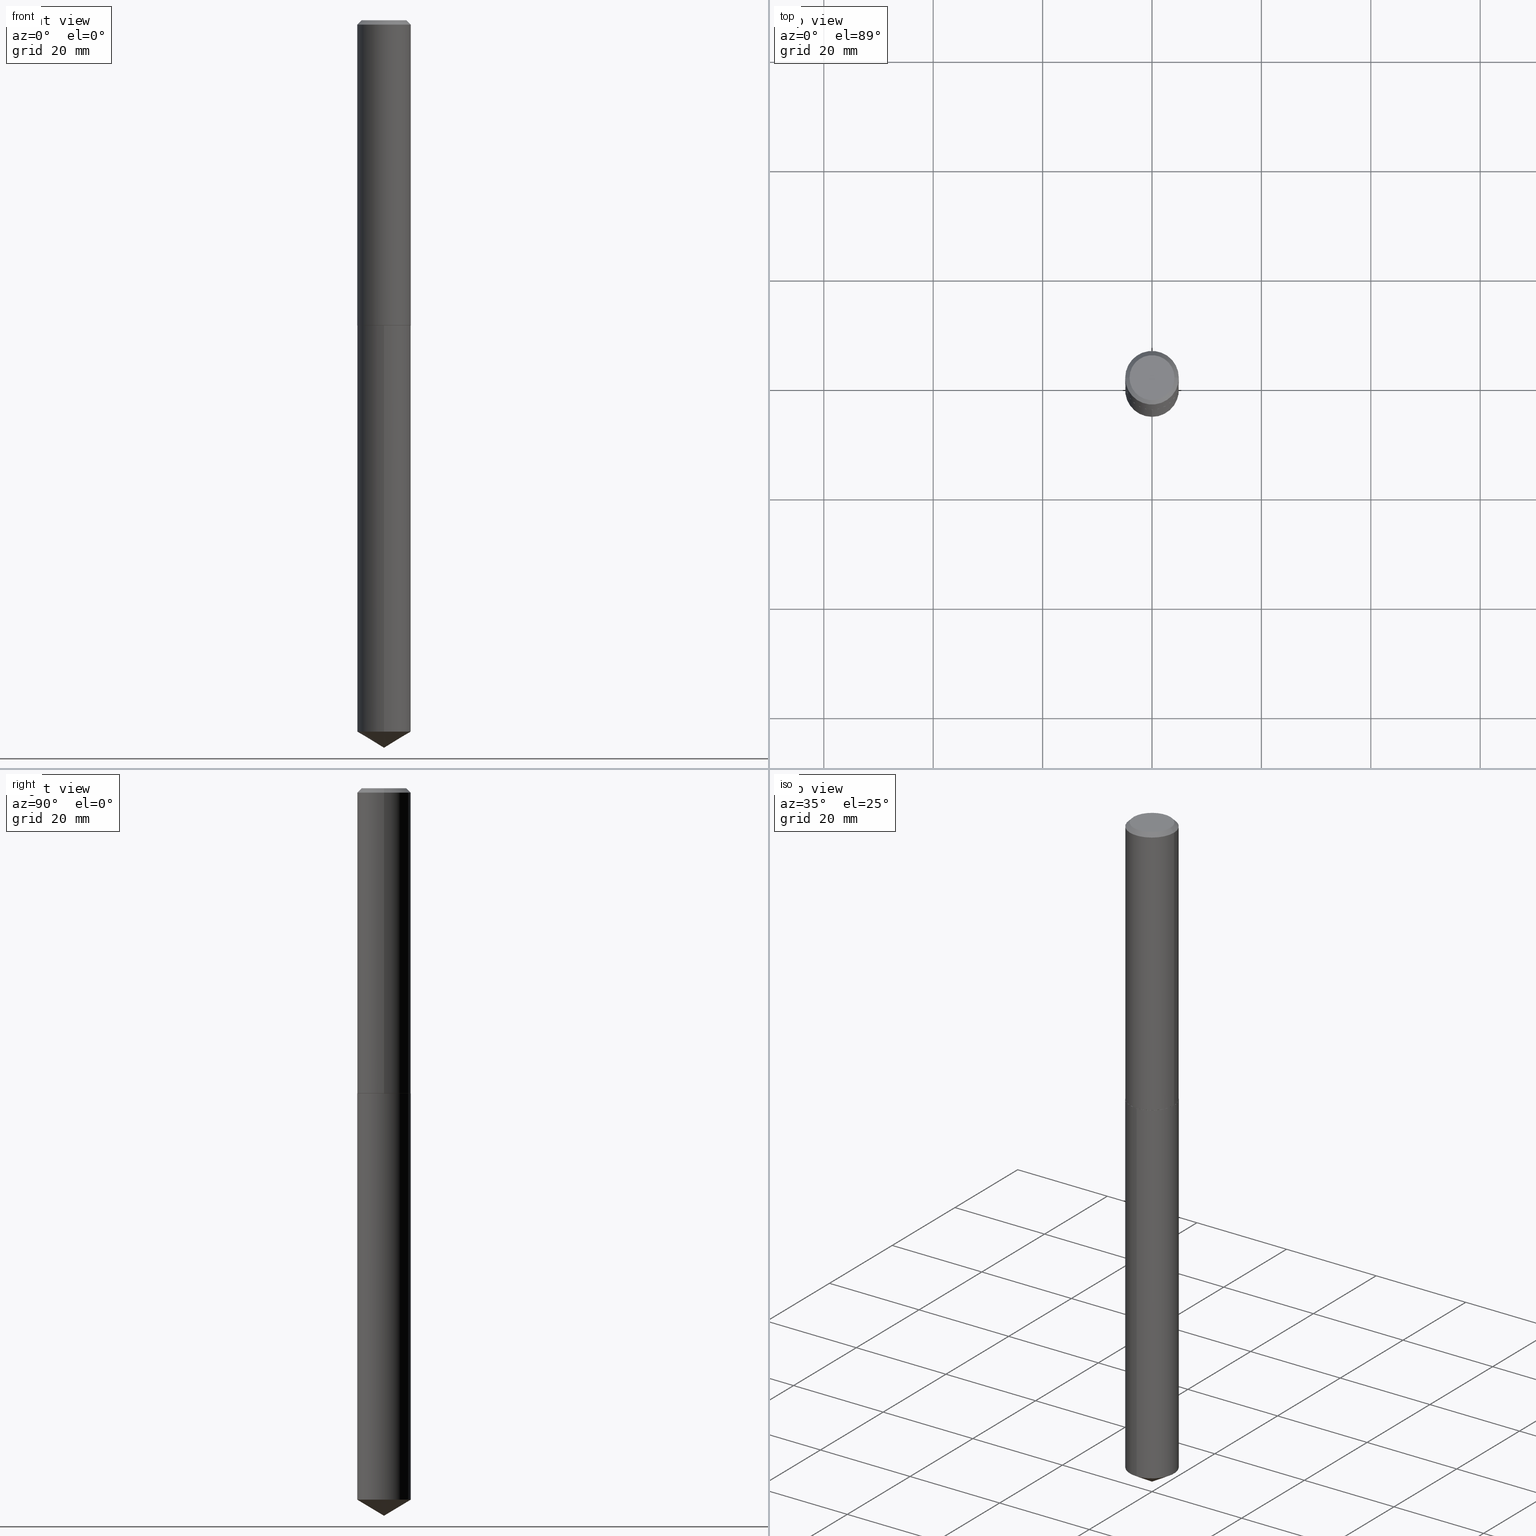
[diagram: canonical four-view strip — front | top / right | iso, engineering-drawing reading convention]
A machine part, canonical four-view strip (front | top / right | iso — engineering-drawing reading convention). The complete STEP part file that produces these views, byte-faithful:
ISO-10303-21;
HEADER;
FILE_DESCRIPTION (( 'STEP AP203' ),
    '1' );
FILE_NAME ('68364.STEP',
    '2024-04-23T13:16:39',
    ( '' ),
    ( '' ),
    'SwSTEP 2.0',
    'SolidWorks 2023',
    '' );
FILE_SCHEMA (( 'CONFIG_CONTROL_DESIGN' ));
ENDSEC;

DATA;
#1 = APPROVAL_ROLE ( '' ) ;
#2 = DIRECTION ( 'NONE',  ( -2.445443870403616204E-29, 3.491517048301539205E-15, 1.000000000000000000 ) ) ;
#3 = EDGE_CURVE ( 'NONE', #51, #147, #343, .T. ) ;
#4 = COORDINATED_UNIVERSAL_TIME_OFFSET ( 5, 0, .BEHIND. ) ;
#5 = DIRECTION ( 'NONE',  ( -1.000000000000000000, 6.982962677686265922E-15, -4.876176775795935793E-29 ) ) ;
#6 = PRODUCT_DEFINITION_FORMATION_WITH_SPECIFIED_SOURCE ( 'ANY', '', #300, .NOT_KNOWN. ) ;
#7 = CARTESIAN_POINT ( 'NONE',  ( 0.1924000000000002375, -9.013608224357465369E-15, -2.196800000000000974 ) ) ;
#8 = ADVANCED_FACE ( 'NONE', ( #139 ), #357, .T. ) ;
#9 = VECTOR ( 'NONE', #276, 39.37007874015748143 ) ;
#10 = ORIENTED_EDGE ( 'NONE', *, *, #31, .T. ) ;
#11 = CARTESIAN_POINT ( 'NONE',  ( 5.370983139024416921E-29, -7.668340464501203443E-15, -2.196300000000000363 ) ) ;
#12 = DIRECTION ( 'NONE',  ( -2.445468806185136597E-29, 3.491481338843145583E-15, 1.000000000000000000 ) ) ;
#13 = DIRECTION ( 'NONE',  ( -6.982962677686265133E-15, -1.000000000000000000, 2.832398127179122126E-15 ) ) ;
#14 = CARTESIAN_POINT ( 'NONE',  ( 0.1929000000000000992, -1.347013500525681457E-15, 9.406145000510366209E-30 ) ) ;
#15 = VERTEX_POINT ( 'NONE', #353 ) ;
#16 = APPROVAL ( #30, 'UNSPECIFIED' ) ;
#17 = DIRECTION ( 'NONE',  ( -2.445468806185136597E-29, 3.491481338843145583E-15, 1.000000000000000000 ) ) ;
#18 = ORIENTED_EDGE ( 'NONE', *, *, #74, .T. ) ;
#19 = CARTESIAN_POINT ( 'NONE',  ( 0.1928999999999999881, -1.456122292364529769E-15, -0.03125000000000022898 ) ) ;
#20 = CIRCLE ( 'NONE', #238, 0.1928999999999999881 ) ;
#21 = VERTEX_POINT ( 'NONE', #122 ) ;
#22 = AXIS2_PLACEMENT_3D ( 'NONE', #112, #12, #49 ) ;
#23 = CARTESIAN_POINT ( 'NONE',  ( 5.370983139024416921E-29, -7.668340464501203443E-15, -2.196300000000000363 ) ) ;
#24 = VERTEX_POINT ( 'NONE', #301 ) ;
#25 = EDGE_CURVE ( 'NONE', #282, #310, #358, .T. ) ;
#26 = COORDINATED_UNIVERSAL_TIME_OFFSET ( 5, 0, .BEHIND. ) ;
#27 = CALENDAR_DATE ( 2024, 23, 4 ) ;
#28 = CONICAL_SURFACE ( 'NONE', #75, 0.1928999999999999881, 0.7853981633974447263 ) ;
#29 = CIRCLE ( 'NONE', #101, 0.1924000000000002375 ) ;
#30 = APPROVAL_STATUS ( 'not_yet_approved' ) ;
#31 = EDGE_CURVE ( 'NONE', #53, #320, #124, .T. ) ;
#32 = COORDINATED_UNIVERSAL_TIME_OFFSET ( 5, 0, .BEHIND. ) ;
#33 = DIRECTION ( 'NONE',  ( -6.982962677686265133E-15, -1.000000000000000000, 5.664796254358244252E-15 ) ) ;
#34 = CARTESIAN_POINT ( 'NONE',  ( -2.919964657261546988E-48, 4.168935659749483075E-34, 1.194030629168650459E-19 ) ) ;
#35 = LOCAL_TIME ( 9, 16, 39.00000000000000000, #179 ) ;
#36 = APPLICATION_PROTOCOL_DEFINITION ( 'international standard', 'config_control_design', 1994, #243 ) ;
#37 = DIRECTION ( 'NONE',  ( 2.438088387897960049E-29, -3.491481338843145188E-15, -1.000000000000000000 ) ) ;
#38 = EDGE_CURVE ( 'NONE', #310, #282, #20, .T. ) ;
#39 = LOCAL_TIME ( 9, 16, 39.00000000000000000, #26 ) ;
#40 = CARTESIAN_POINT ( 'NONE',  ( 0.000000000000000000, 0.000000000000000000, 0.000000000000000000 ) ) ;
#41 = ORIENTED_EDGE ( 'NONE', *, *, #331, .F. ) ;
#42 = CC_DESIGN_PERSON_AND_ORGANIZATION_ASSIGNMENT ( #85, #325, ( #300 ) ) ;
#43 = DIRECTION ( 'NONE',  ( -2.445468806185136597E-29, 3.491481338843145583E-15, 1.000000000000000000 ) ) ;
#44 = ORIENTED_EDGE ( 'NONE', *, *, #220, .T. ) ;
#45 = VECTOR ( 'NONE', #67, 39.37007874015748143 ) ;
#46 = CARTESIAN_POINT ( 'NONE',  ( -5.839929314523093975E-48, 8.337871319498966151E-34, 2.388061258337300918E-19 ) ) ;
#47 = VECTOR ( 'NONE', #106, 39.37007874015748143 ) ;
#48 = EDGE_LOOP ( 'NONE', ( #116, #172, #264, #204 ) ) ;
#49 = DIRECTION ( 'NONE',  ( 1.000000000000000000, -6.982962677686268288E-15, 0.000000000000000000 ) ) ;
#50 = ADVANCED_FACE ( 'NONE', ( #127 ), #253, .T. ) ;
#51 = VERTEX_POINT ( 'NONE', #188 ) ;
#52 = FACE_OUTER_BOUND ( 'NONE', #231, .T. ) ;
#53 = VERTEX_POINT ( 'NONE', #7 ) ;
#54 = FACE_OUTER_BOUND ( 'NONE', #312, .T. ) ;
#55 = CARTESIAN_POINT ( 'NONE',  ( 5.372205873427508601E-29, -7.670086205170624158E-15, -2.196800000000000530 ) ) ;
#56 = EDGE_CURVE ( 'NONE', #15, #255, #285, .T. ) ;
#57 = PERSON_AND_ORGANIZATION ( #275, #205 ) ;
#58 = PERSON_AND_ORGANIZATION ( #275, #205 ) ;
#59 = EDGE_CURVE ( 'NONE', #147, #51, #64, .T. ) ;
#60 = AXIS2_PLACEMENT_3D ( 'NONE', #224, #315, #292 ) ;
#61 = CONICAL_SURFACE ( 'NONE', #381, 65.52281426576882950, 1.029744258676657198 ) ;
#62 = APPROVAL_ROLE ( '' ) ;
#63 =( NAMED_UNIT ( * ) PLANE_ANGLE_UNIT ( ) SI_UNIT ( $, .RADIAN. ) );
#64 = CIRCLE ( 'NONE', #176, 0.1928999999999999881 ) ;
#65 = VECTOR ( 'NONE', #379, 39.37007874015748143 ) ;
#66 = CYLINDRICAL_SURFACE ( 'NONE', #168, 0.1928999999999999881 ) ;
#67 = DIRECTION ( 'NONE',  ( 0.7071067811865450192, -7.319954787623246579E-15, -0.7071067811865500152 ) ) ;
#68 = CC_DESIGN_SECURITY_CLASSIFICATION ( #192, ( #6 ) ) ;
#69 = CARTESIAN_POINT ( 'NONE',  ( 0.1928999999999999881, -1.432498855608977264E-15, -0.03125000000000022898 ) ) ;
#70 = CARTESIAN_POINT ( 'NONE',  ( -1.347013500525555043E-15, -0.1929000000000178627, -5.120293986589583568 ) ) ;
#71 = EDGE_LOOP ( 'NONE', ( #249, #164, #134, #340 ) ) ;
#72 = CARTESIAN_POINT ( 'NONE',  ( -0.1616499999999999604, 1.183350312767408201E-15, 2.388061258256453268E-19 ) ) ;
#73 = ORIENTED_EDGE ( 'NONE', *, *, #199, .T. ) ;
#74 = EDGE_CURVE ( 'NONE', #320, #378, #221, .T. ) ;
#75 = AXIS2_PLACEMENT_3D ( 'NONE', #283, #76, #341 ) ;
#76 = DIRECTION ( 'NONE',  ( 2.445468806185136597E-29, -3.491481338843145583E-15, -1.000000000000000000 ) ) ;
#77 = AXIS2_PLACEMENT_3D ( 'NONE', #34, #37, #5 ) ;
#78 = ORIENTED_EDGE ( 'NONE', *, *, #144, .F. ) ;
#79 = LINE ( 'NONE', #14, #47 ) ;
#80 = ORIENTED_EDGE ( 'NONE', *, *, #144, .T. ) ;
#81 = CARTESIAN_POINT ( 'NONE',  ( 1.370636937281286422E-15, 0.1928999999999922998, -2.196800000000000974 ) ) ;
#82 = EDGE_LOOP ( 'NONE', ( #194, #262, #149, #78 ) ) ;
#83 = PRODUCT_DEFINITION ( 'UNKNOWN', '', #6, #113 ) ;
#84 = DIRECTION ( 'NONE',  ( -6.982962677686266711E-15, -1.000000000000000000, 3.468864327941573309E-15 ) ) ;
#85 = PERSON_AND_ORGANIZATION ( #275, #205 ) ;
#86 = SECURITY_CLASSIFICATION_LEVEL ( 'unclassified' ) ;
#87 =( CONVERSION_BASED_UNIT ( 'INCH', #354 ) LENGTH_UNIT ( ) NAMED_UNIT ( #108 ) );
#88 = DATE_TIME_ROLE ( 'classification_date' ) ;
#89 = PERSON_AND_ORGANIZATION_ROLE ( 'classification_officer' ) ;
#90 = PRODUCT_DEFINITION_SHAPE ( 'NONE', 'NONE',  #83 ) ;
#91 = ADVANCED_FACE ( 'NONE', ( #248 ), #66, .T. ) ;
#92 = CARTESIAN_POINT ( 'NONE',  ( 5.372205873427508601E-29, -7.670086205170624158E-15, -2.196800000000000530 ) ) ;
#93 = DIRECTION ( 'NONE',  ( 1.000000000000000000, -6.982962677686267499E-15, 0.000000000000000000 ) ) ;
#94 = AXIS2_PLACEMENT_3D ( 'NONE', #40, #371, #100 ) ;
#95 = AXIS2_PLACEMENT_3D ( 'NONE', #23, #145, #348 ) ;
#96 = DIRECTION ( 'NONE',  ( -2.445443870403616204E-29, 3.491517048301539205E-15, 1.000000000000000000 ) ) ;
#97 = EDGE_CURVE ( 'NONE', #349, #255, #217, .T. ) ;
#98 = DIRECTION ( 'NONE',  ( -6.982962677686265133E-15, -1.000000000000000000, 2.832398127179122126E-15 ) ) ;
#99 = ORIENTED_EDGE ( 'NONE', *, *, #331, .T. ) ;
#100 = DIRECTION ( 'NONE',  ( 1.000000000000000000, -6.982962677686265922E-15, 4.876176775795936353E-29 ) ) ;
#101 = AXIS2_PLACEMENT_3D ( 'NONE', #321, #17, #110 ) ;
#102 = CARTESIAN_POINT ( 'NONE',  ( 1.280494371275012541E-28, -1.828212467524012187E-14, -5.236200000000000188 ) ) ;
#103 = FACE_OUTER_BOUND ( 'NONE', #380, .T. ) ;
#104 = ORIENTED_EDGE ( 'NONE', *, *, #25, .T. ) ;
#105 = ADVANCED_FACE ( 'NONE', ( #189 ), #308, .T. ) ;
#106 = DIRECTION ( 'NONE',  ( -2.445468806185136877E-29, 3.491481338843145188E-15, 1.000000000000000000 ) ) ;
#107 = EDGE_LOOP ( 'NONE', ( #18, #229, #376, #41 ) ) ;
#108 = DIMENSIONAL_EXPONENTS ( 1.000000000000000000, 0.000000000000000000, 0.000000000000000000, 0.000000000000000000, 0.000000000000000000, 0.000000000000000000, 0.000000000000000000 ) ;
#109 = CLOSED_SHELL ( 'NONE', ( #369, #8, #346, #91, #334 ) ) ;
#110 = DIRECTION ( 'NONE',  ( 1.000000000000000000, -6.982962677686268288E-15, 0.000000000000000000 ) ) ;
#111 = ORIENTED_EDGE ( 'NONE', *, *, #199, .F. ) ;
#112 = CARTESIAN_POINT ( 'NONE',  ( 5.372205873427510843E-29, -7.670086205170625735E-15, -2.196800000000000974 ) ) ;
#113 = DESIGN_CONTEXT ( 'detailed design', #290, 'design' ) ;
#114 = ORIENTED_EDGE ( 'NONE', *, *, #3, .T. ) ;
#115 = SHAPE_DEFINITION_REPRESENTATION ( #90, #370 ) ;
#116 = ORIENTED_EDGE ( 'NONE', *, *, #38, .T. ) ;
#117 = CARTESIAN_POINT ( 'NONE',  ( -5.839929314523093975E-48, 8.337871319498966151E-34, 2.388061258337300918E-19 ) ) ;
#118 = PERSON_AND_ORGANIZATION ( #275, #205 ) ;
#119 =( LENGTH_UNIT ( ) NAMED_UNIT ( * ) SI_UNIT ( $, .METRE. ) );
#120 = DIRECTION ( 'NONE',  ( 1.000000000000000000, -6.982962677686267499E-15, 4.876183415243420366E-29 ) ) ;
#121 = PERSON_AND_ORGANIZATION ( #275, #205 ) ;
#122 = CARTESIAN_POINT ( 'NONE',  ( -0.1924000000000002375, -6.300352754394079300E-15, -2.196800000000000974 ) ) ;
#123 = PERSON_AND_ORGANIZATION ( #275, #205 ) ;
#124 = LINE ( 'NONE', #241, #326 ) ;
#125 = CIRCLE ( 'NONE', #247, 0.1616499999999999604 ) ;
#126 = EDGE_CURVE ( 'NONE', #310, #147, #219, .T. ) ;
#127 = FACE_OUTER_BOUND ( 'NONE', #82, .T. ) ;
#128 = PLANE ( 'NONE',  #77 ) ;
#129 = AXIS2_PLACEMENT_3D ( 'NONE', #46, #142, #382 ) ;
#130 = ADVANCED_FACE ( 'NONE', ( #103 ), #28, .T. ) ;
#131 = LOCAL_TIME ( 9, 16, 39.00000000000000000, #328 ) ;
#132 = DIRECTION ( 'NONE',  ( -6.982962677686265133E-15, -1.000000000000000000, 2.832398127179122126E-15 ) ) ;
#133 = ORIENTED_EDGE ( 'NONE', *, *, #97, .F. ) ;
#134 = ORIENTED_EDGE ( 'NONE', *, *, #74, .F. ) ;
#135 = DIRECTION ( 'NONE',  ( 1.000000000000000000, -6.982962677686267499E-15, 0.000000000000000000 ) ) ;
#136 = VECTOR ( 'NONE', #261, 39.37007874015748854 ) ;
#137 = DIRECTION ( 'NONE',  ( 1.000000000000000000, -6.982962677686265922E-15, 4.876176775795935793E-29 ) ) ;
#138 = UNCERTAINTY_MEASURE_WITH_UNIT (LENGTH_MEASURE( 1.000000000000000082E-05 ), #87, 'distance_accuracy_value', 'NONE');
#139 = FACE_OUTER_BOUND ( 'NONE', #342, .T. ) ;
#140 = DIRECTION ( 'NONE',  ( -2.445443870403616204E-29, 3.491517048301539205E-15, 1.000000000000000000 ) ) ;
#141 = ORIENTED_EDGE ( 'NONE', *, *, #274, .F. ) ;
#142 = DIRECTION ( 'NONE',  ( -2.445468806185136597E-29, 3.491481338843145583E-15, 1.000000000000000000 ) ) ;
#143 = ORIENTED_EDGE ( 'NONE', *, *, #361, .T. ) ;
#144 = EDGE_CURVE ( 'NONE', #167, #15, #193, .T. ) ;
#145 = DIRECTION ( 'NONE',  ( -2.445468806185136597E-29, 3.491481338843145583E-15, 1.000000000000000000 ) ) ;
#146 = LOCAL_TIME ( 9, 16, 39.00000000000000000, #32 ) ;
#147 = VERTEX_POINT ( 'NONE', #198 ) ;
#148 = APPLICATION_PROTOCOL_DEFINITION ( 'international standard', 'config_control_design', 1994, #290 ) ;
#149 = ORIENTED_EDGE ( 'NONE', *, *, #388, .T. ) ;
#150 = CARTESIAN_POINT ( 'NONE',  ( 1.252144632309483871E-28, -1.787751529995518748E-14, -5.120293986589584456 ) ) ;
#151 = AXIS2_PLACEMENT_3D ( 'NONE', #237, #212, #186 ) ;
#152 = CC_DESIGN_PERSON_AND_ORGANIZATION_ASSIGNMENT ( #118, #360, ( #6 ) ) ;
#153 = DIRECTION ( 'NONE',  ( -6.982962677686265133E-15, -1.000000000000000000, 2.832398127179122126E-15 ) ) ;
#154 = APPROVAL_DATE_TIME ( #352, #250 ) ;
#155 = CALENDAR_DATE ( 2024, 23, 4 ) ;
#156 = CARTESIAN_POINT ( 'NONE',  ( 5.372205873427508601E-29, -7.670086205170624158E-15, -2.196800000000000530 ) ) ;
#157 = MANIFOLD_SOLID_BREP ( 'Body-Move/Copy2[2]', #209 ) ;
#158 = EDGE_CURVE ( 'NONE', #349, #167, #293, .T. ) ;
#159 = DIRECTION ( 'NONE',  ( -1.000000000000000000, 6.982962677686267499E-15, 0.000000000000000000 ) ) ;
#160 = CARTESIAN_POINT ( 'NONE',  ( 7.642090019328607917E-31, -1.091087918388491006E-16, -0.03125000000000022898 ) ) ;
#161 = CIRCLE ( 'NONE', #359, 0.1928999999999999881 ) ;
#162 = MANIFOLD_SOLID_BREP ( 'Body-Move/Copy2[1]', #109 ) ;
#163 = DIRECTION ( 'NONE',  ( -2.445468806185136597E-29, 3.491481338843145583E-15, 1.000000000000000000 ) ) ;
#164 = ORIENTED_EDGE ( 'NONE', *, *, #216, .T. ) ;
#165 = ADVANCED_FACE ( 'NONE', ( #311 ), #267, .T. ) ;
#166 = DIRECTION ( 'NONE',  ( -5.985567269335953901E-15, -0.8571673007021120005, 0.5150380749100549327 ) ) ;
#167 = VERTEX_POINT ( 'NONE', #72 ) ;
#168 = AXIS2_PLACEMENT_3D ( 'NONE', #92, #306, #98 ) ;
#169 = LINE ( 'NONE', #372, #9 ) ;
#170 = EDGE_LOOP ( 'NONE', ( #280, #104, #202, #383 ) ) ;
#171 = DIRECTION ( 'NONE',  ( -2.445468806185136597E-29, 3.491481338843145583E-15, 1.000000000000000000 ) ) ;
#172 = ORIENTED_EDGE ( 'NONE', *, *, #210, .T. ) ;
#173 = CC_DESIGN_PERSON_AND_ORGANIZATION_ASSIGNMENT ( #57, #89, ( #192 ) ) ;
#174 = CARTESIAN_POINT ( 'NONE',  ( -8.347242975929358884E-28, 1.191790979924555124E-13, 34.13387874015747769 ) ) ;
#175 = ORIENTED_EDGE ( 'NONE', *, *, #220, .F. ) ;
#176 = AXIS2_PLACEMENT_3D ( 'NONE', #246, #96, #132 ) ;
#177 = CC_DESIGN_APPROVAL ( #233, ( #83 ) ) ;
#178 = CARTESIAN_POINT ( 'NONE',  ( 3.194086371262519138E-29, -1.078927730313406052E-14, -2.196800000000000530 ) ) ;
#179 = COORDINATED_UNIVERSAL_TIME_OFFSET ( 5, 0, .BEHIND. ) ;
#180 = DIRECTION ( 'NONE',  ( -2.445443870403616204E-29, 3.491517048301539205E-15, 1.000000000000000000 ) ) ;
#181 = APPROVAL_DATE_TIME ( #356, #16 ) ;
#182 = EDGE_CURVE ( 'NONE', #378, #320, #368, .T. ) ;
#183 = CARTESIAN_POINT ( 'NONE',  ( 0.000000000000000000, 0.000000000000000000, 0.000000000000000000 ) ) ;
#184 = DIRECTION ( 'NONE',  ( -2.445443870403616204E-29, 3.491517048301539205E-15, 1.000000000000000000 ) ) ;
#185 = AXIS2_PLACEMENT_3D ( 'NONE', #377, #43, #252 ) ;
#186 = DIRECTION ( 'NONE',  ( 1.000000000000000000, -6.982962677686270655E-15, 0.000000000000000000 ) ) ;
#187 = PRODUCT_RELATED_PRODUCT_CATEGORY ( 'detail', '', ( #300 ) ) ;
#188 = CARTESIAN_POINT ( 'NONE',  ( 1.370636937281358800E-15, 0.1928999999999923276, -2.196800000000000974 ) ) ;
#189 = FACE_OUTER_BOUND ( 'NONE', #289, .T. ) ;
#190 = ORIENTED_EDGE ( 'NONE', *, *, #56, .F. ) ;
#191 = AXIS2_PLACEMENT_3D ( 'NONE', #150, #184, #33 ) ;
#192 = SECURITY_CLASSIFICATION ( '', '', #86 ) ;
#193 = LINE ( 'NONE', #314, #367 ) ;
#194 = ORIENTED_EDGE ( 'NONE', *, *, #158, .F. ) ;
#195 = FACE_OUTER_BOUND ( 'NONE', #107, .T. ) ;
#196 = ORIENTED_EDGE ( 'NONE', *, *, #38, .F. ) ;
#197 = VECTOR ( 'NONE', #166, 39.37007874015747433 ) ;
#198 = CARTESIAN_POINT ( 'NONE',  ( -1.347013500525626829E-15, -0.1929000000000076487, -2.196800000000000086 ) ) ;
#199 = EDGE_CURVE ( 'NONE', #24, #310, #281, .T. ) ;
#200 = ORIENTED_EDGE ( 'NONE', *, *, #59, .T. ) ;
#201 = CARTESIAN_POINT ( 'NONE',  ( 5.372205873427508601E-29, -7.670086205170624158E-15, -2.196800000000000530 ) ) ;
#202 = ORIENTED_EDGE ( 'NONE', *, *, #126, .T. ) ;
#203 = CARTESIAN_POINT ( 'NONE',  ( 1.370636937281358012E-15, 0.1928999999999820580, -5.120293986589585344 ) ) ;
#204 = ORIENTED_EDGE ( 'NONE', *, *, #126, .F. ) ;
#205 = ORGANIZATION ( 'UNSPECIFIED', 'UNSPECIFIED', '' ) ;
#206 = APPROVAL_ROLE ( '' ) ;
#207 = DATE_AND_TIME ( #155, #35 ) ;
#208 = MECHANICAL_CONTEXT ( 'NONE', #243, 'mechanical' ) ;
#209 = CLOSED_SHELL ( 'NONE', ( #50, #302, #374, #313, #165, #105, #130, #384 ) ) ;
#210 = EDGE_CURVE ( 'NONE', #282, #51, #317, .T. ) ;
#211 = APPROVAL_PERSON_ORGANIZATION ( #234, #250, #1 ) ;
#212 = DIRECTION ( 'NONE',  ( -2.445468806185136597E-29, 3.491481338843145583E-15, 1.000000000000000000 ) ) ;
#213 = DIRECTION ( 'NONE',  ( -2.445443870403616204E-29, 3.491517048301539205E-15, 1.000000000000000000 ) ) ;
#214 = FACE_OUTER_BOUND ( 'NONE', #232, .T. ) ;
#215 = AXIS2_PLACEMENT_3D ( 'NONE', #160, #245, #135 ) ;
#216 = EDGE_CURVE ( 'NONE', #21, #378, #169, .T. ) ;
#217 = LINE ( 'NONE', #69, #45 ) ;
#218 = ORIENTED_EDGE ( 'NONE', *, *, #307, .T. ) ;
#219 = LINE ( 'NONE', #364, #266 ) ;
#220 = EDGE_CURVE ( 'NONE', #24, #282, #228, .T. ) ;
#221 = CIRCLE ( 'NONE', #389, 0.1929000000000002379 ) ;
#222 = CARTESIAN_POINT ( 'NONE',  ( 1.280483319420741938E-28, -1.828228156831652020E-14, -5.236200000000000188 ) ) ;
#223 = PLANE ( 'NONE',  #273 ) ;
#224 = CARTESIAN_POINT ( 'NONE',  ( -8.347242975929358884E-28, 1.191790979924555124E-13, 34.13387874015747769 ) ) ;
#225 = PLANE ( 'NONE',  #316 ) ;
#226 = ORIENTED_EDGE ( 'NONE', *, *, #324, .F. ) ;
#227 = AXIS2_PLACEMENT_3D ( 'NONE', #279, #171, #230 ) ;
#228 = LINE ( 'NONE', #102, #136 ) ;
#229 = ORIENTED_EDGE ( 'NONE', *, *, #324, .T. ) ;
#230 = DIRECTION ( 'NONE',  ( 1.000000000000000000, -6.982962677686265922E-15, 4.876176775795936353E-29 ) ) ;
#231 = EDGE_LOOP ( 'NONE', ( #175, #73, #318 ) ) ;
#232 = EDGE_LOOP ( 'NONE', ( #143, #322 ) ) ;
#233 = APPROVAL ( #390, 'UNSPECIFIED' ) ;
#234 = PERSON_AND_ORGANIZATION ( #275, #205 ) ;
#235 = DIRECTION ( 'NONE',  ( 0.000000000000000000, 0.000000000000000000, 1.000000000000000000 ) ) ;
#236 = CALENDAR_DATE ( 2024, 23, 4 ) ;
#237 = CARTESIAN_POINT ( 'NONE',  ( 5.370983139024416921E-29, -7.668340464501203443E-15, -2.196300000000000363 ) ) ;
#238 = AXIS2_PLACEMENT_3D ( 'NONE', #362, #213, #270 ) ;
#239 = DIRECTION ( 'NONE',  ( 1.000000000000000000, 0.000000000000000000, 0.000000000000000000 ) ) ;
#240 = CC_DESIGN_APPROVAL ( #16, ( #192 ) ) ;
#241 = CARTESIAN_POINT ( 'NONE',  ( 0.1929000000000002379, -9.015353965026886084E-15, -2.196300000000000363 ) ) ;
#242 = CC_DESIGN_APPROVAL ( #250, ( #6 ) ) ;
#243 = APPLICATION_CONTEXT ( 'configuration controlled 3d designs of mechanical parts and assemblies' ) ;
#244 = CARTESIAN_POINT ( 'NONE',  ( 7.642090019328607917E-31, -1.091087918388491006E-16, -0.03125000000000022898 ) ) ;
#245 = DIRECTION ( 'NONE',  ( -2.445468806185136597E-29, 3.491481338843145583E-15, 1.000000000000000000 ) ) ;
#246 = CARTESIAN_POINT ( 'NONE',  ( 5.372205873427508601E-29, -7.670086205170624158E-15, -2.196800000000000530 ) ) ;
#247 = AXIS2_PLACEMENT_3D ( 'NONE', #117, #323, #120 ) ;
#248 = FACE_OUTER_BOUND ( 'NONE', #170, .T. ) ;
#249 = ORIENTED_EDGE ( 'NONE', *, *, #274, .T. ) ;
#250 = APPROVAL ( #330, 'UNSPECIFIED' ) ;
#251 = DIRECTION ( 'NONE',  ( 1.000000000000000000, -6.982962677686270655E-15, 0.000000000000000000 ) ) ;
#252 = DIRECTION ( 'NONE',  ( 1.000000000000000000, -6.982962677686270655E-15, 0.000000000000000000 ) ) ;
#253 = CONICAL_SURFACE ( 'NONE', #336, 0.1928999999999999881, 0.7853981633974447263 ) ;
#254 = CARTESIAN_POINT ( 'NONE',  ( -0.1929000000000000992, 1.370636937281233963E-15, -9.488625789101718769E-30 ) ) ;
#255 = VERTEX_POINT ( 'NONE', #19 ) ;
#256 = DIRECTION ( 'NONE',  ( -2.438088387897960049E-29, 3.491481338843145188E-15, 1.000000000000000000 ) ) ;
#257 = ORIENTED_EDGE ( 'NONE', *, *, #216, .F. ) ;
#258 = CC_DESIGN_DATE_AND_TIME_ASSIGNMENT ( #207, #88, ( #192 ) ) ;
#259 = LINE ( 'NONE', #254, #65 ) ;
#260 = ORIENTED_EDGE ( 'NONE', *, *, #361, .F. ) ;
#261 = DIRECTION ( 'NONE',  ( 6.090539988449790268E-15, 0.8571673007021154422, 0.5150380749100488265 ) ) ;
#262 = ORIENTED_EDGE ( 'NONE', *, *, #97, .T. ) ;
#263 = CALENDAR_DATE ( 2024, 23, 4 ) ;
#264 = ORIENTED_EDGE ( 'NONE', *, *, #59, .F. ) ;
#265 = DATE_AND_TIME ( #385, #344 ) ;
#266 = VECTOR ( 'NONE', #366, 39.37007874015748143 ) ;
#267 = CONICAL_SURFACE ( 'NONE', #95, 0.1929000000000002379, 0.7853981633970044118 ) ;
#268 = DATE_TIME_ROLE ( 'creation_date' ) ;
#269 = PERSON_AND_ORGANIZATION_ROLE ( 'creator' ) ;
#270 = DIRECTION ( 'NONE',  ( -6.982962677686265133E-15, -1.000000000000000000, 5.664796254358244252E-15 ) ) ;
#271 = CC_DESIGN_PERSON_AND_ORGANIZATION_ASSIGNMENT ( #123, #298, ( #6 ) ) ;
#272 = CARTESIAN_POINT ( 'NONE',  ( 7.642090019328607917E-31, -1.091087918388491006E-16, -0.03125000000000022898 ) ) ;
#273 = AXIS2_PLACEMENT_3D ( 'NONE', #201, #319, #339 ) ;
#274 = EDGE_CURVE ( 'NONE', #53, #21, #303, .T. ) ;
#275 = PERSON ( 'UNSPECIFIED', 'UNSPECIFIED', 'UNSPECIFIED', ('UNSPECIFIED'), ('UNSPECIFIED'), ('UNSPECIFIED') ) ;
#276 = DIRECTION ( 'NONE',  ( -0.7071067811862336017, 7.493145998869219778E-15, 0.7071067811868614328 ) ) ;
#277 = ORIENTED_EDGE ( 'NONE', *, *, #307, .F. ) ;
#278 =( GEOMETRIC_REPRESENTATION_CONTEXT ( 3 ) GLOBAL_UNCERTAINTY_ASSIGNED_CONTEXT ( ( #138 ) ) GLOBAL_UNIT_ASSIGNED_CONTEXT ( ( #87, #63, #329 ) ) REPRESENTATION_CONTEXT ( 'NONE', 'WORKASPACE' ) );
#279 = CARTESIAN_POINT ( 'NONE',  ( 0.000000000000000000, 0.000000000000000000, 0.000000000000000000 ) ) ;
#280 = ORIENTED_EDGE ( 'NONE', *, *, #210, .F. ) ;
#281 = LINE ( 'NONE', #222, #197 ) ;
#282 = VERTEX_POINT ( 'NONE', #203 ) ;
#283 = CARTESIAN_POINT ( 'NONE',  ( 7.642090019328607917E-31, -1.091087918388491006E-16, -0.03125000000000022898 ) ) ;
#284 = EDGE_LOOP ( 'NONE', ( #257, #218, #10, #386 ) ) ;
#285 = CIRCLE ( 'NONE', #215, 0.1928999999999999881 ) ;
#286 = CONICAL_SURFACE ( 'NONE', #151, 0.1929000000000002379, 0.7853981633970044118 ) ;
#287 = CARTESIAN_POINT ( 'NONE',  ( 0.1929000000000002379, -9.015353965026886084E-15, -2.196300000000000363 ) ) ;
#288 = PERSON_AND_ORGANIZATION ( #275, #205 ) ;
#289 = EDGE_LOOP ( 'NONE', ( #226, #350, #99, #190 ) ) ;
#290 = APPLICATION_CONTEXT ( 'configuration controlled 3d designs of mechanical parts and assemblies' ) ;
#291 = DIRECTION ( 'NONE',  ( -2.445443870403616204E-29, 3.491517048301539205E-15, 1.000000000000000000 ) ) ;
#292 = DIRECTION ( 'NONE',  ( -6.982962677686266711E-15, -1.000000000000000000, 3.468864327941573309E-15 ) ) ;
#293 = CIRCLE ( 'NONE', #129, 0.1616499999999999604 ) ;
#294 = AXIS2_PLACEMENT_3D ( 'NONE', #183, #235, #239 ) ;
#295 = APPROVAL_DATE_TIME ( #387, #233 ) ;
#296 = DIRECTION ( 'NONE',  ( 0.7071067811862336017, -2.468850131078969088E-15, 0.7071067811868614328 ) ) ;
#297 = CC_DESIGN_PERSON_AND_ORGANIZATION_ASSIGNMENT ( #121, #269, ( #83 ) ) ;
#298 = PERSON_AND_ORGANIZATION_ROLE ( 'design_supplier' ) ;
#299 = CARTESIAN_POINT ( 'NONE',  ( -0.1929000000000002379, -6.297703527219967311E-15, -2.196300000000000363 ) ) ;
#300 = PRODUCT ( '68364', '68364', '', ( #208 ) ) ;
#301 = CARTESIAN_POINT ( 'NONE',  ( 1.280483319420741714E-28, -1.828228156831652020E-14, -5.236200000000000188 ) ) ;
#302 = ADVANCED_FACE ( 'NONE', ( #195 ), #337, .T. ) ;
#303 = CIRCLE ( 'NONE', #22, 0.1924000000000002375 ) ;
#304 = CYLINDRICAL_SURFACE ( 'NONE', #327, 0.1928999999999999881 ) ;
#305 = CARTESIAN_POINT ( 'NONE',  ( 0.1616499999999999604, -1.270749178474372533E-15, 2.388061258421199723E-19 ) ) ;
#306 = DIRECTION ( 'NONE',  ( -2.445443870403616204E-29, 3.491517048301539205E-15, 1.000000000000000000 ) ) ;
#307 = EDGE_CURVE ( 'NONE', #21, #53, #29, .T. ) ;
#308 = CYLINDRICAL_SURFACE ( 'NONE', #94, 0.1929000000000000992 ) ;
#309 = APPROVAL_PERSON_ORGANIZATION ( #288, #16, #62 ) ;
#310 = VERTEX_POINT ( 'NONE', #70 ) ;
#311 = FACE_OUTER_BOUND ( 'NONE', #284, .T. ) ;
#312 = EDGE_LOOP ( 'NONE', ( #141, #277 ) ) ;
#313 = ADVANCED_FACE ( 'NONE', ( #54 ), #225, .F. ) ;
#314 = CARTESIAN_POINT ( 'NONE',  ( -0.1928999999999999881, 1.237904708686831765E-15, -0.03125000000000022898 ) ) ;
#315 = DIRECTION ( 'NONE',  ( -2.445443870403616204E-29, 3.491517048301539205E-15, 1.000000000000000000 ) ) ;
#316 = AXIS2_PLACEMENT_3D ( 'NONE', #178, #256, #137 ) ;
#317 = LINE ( 'NONE', #81, #351 ) ;
#318 = ORIENTED_EDGE ( 'NONE', *, *, #25, .F. ) ;
#319 = DIRECTION ( 'NONE',  ( 2.445443870403615924E-29, -3.491517048301539205E-15, -1.000000000000000000 ) ) ;
#320 = VERTEX_POINT ( 'NONE', #287 ) ;
#321 = CARTESIAN_POINT ( 'NONE',  ( 5.372205873427510843E-29, -7.670086205170625735E-15, -2.196800000000000974 ) ) ;
#322 = ORIENTED_EDGE ( 'NONE', *, *, #158, .T. ) ;
#323 = DIRECTION ( 'NONE',  ( -2.445468806185136597E-29, 3.491481338843145583E-15, 1.000000000000000000 ) ) ;
#324 = EDGE_CURVE ( 'NONE', #378, #15, #259, .T. ) ;
#325 = PERSON_AND_ORGANIZATION_ROLE ( 'design_owner' ) ;
#326 = VECTOR ( 'NONE', #296, 39.37007874015748143 ) ;
#327 = AXIS2_PLACEMENT_3D ( 'NONE', #156, #2, #153 ) ;
#328 = COORDINATED_UNIVERSAL_TIME_OFFSET ( 5, 0, .BEHIND. ) ;
#329 =( NAMED_UNIT ( * ) SI_UNIT ( $, .STERADIAN. ) SOLID_ANGLE_UNIT ( ) );
#330 = APPROVAL_STATUS ( 'not_yet_approved' ) ;
#331 = EDGE_CURVE ( 'NONE', #320, #255, #79, .T. ) ;
#332 = AXIS2_PLACEMENT_3D ( 'NONE', #55, #180, #13 ) ;
#333 = DIRECTION ( 'NONE',  ( 2.445468806185136597E-29, -3.491481338843145583E-15, -1.000000000000000000 ) ) ;
#334 = ADVANCED_FACE ( 'NONE', ( #375 ), #223, .F. ) ;
#335 = ORIENTED_EDGE ( 'NONE', *, *, #56, .T. ) ;
#336 = AXIS2_PLACEMENT_3D ( 'NONE', #272, #333, #159 ) ;
#337 = CYLINDRICAL_SURFACE ( 'NONE', #227, 0.1929000000000000992 ) ;
#338 = CC_DESIGN_DATE_AND_TIME_ASSIGNMENT ( #265, #268, ( #83 ) ) ;
#339 = DIRECTION ( 'NONE',  ( 6.982962677686265922E-15, 1.000000000000000000, -3.491517048301539205E-15 ) ) ;
#340 = ORIENTED_EDGE ( 'NONE', *, *, #31, .F. ) ;
#341 = DIRECTION ( 'NONE',  ( -1.000000000000000000, 6.982962677686267499E-15, 0.000000000000000000 ) ) ;
#342 = EDGE_LOOP ( 'NONE', ( #111, #44, #196 ) ) ;
#343 = CIRCLE ( 'NONE', #332, 0.1928999999999999881 ) ;
#344 = LOCAL_TIME ( 9, 16, 39.00000000000000000, #4 ) ;
#345 = DIRECTION ( 'NONE',  ( -0.7071067811865450192, 2.468850131082230634E-15, -0.7071067811865500152 ) ) ;
#346 = ADVANCED_FACE ( 'NONE', ( #52 ), #61, .T. ) ;
#347 = EDGE_LOOP ( 'NONE', ( #200, #114 ) ) ;
#348 = DIRECTION ( 'NONE',  ( 1.000000000000000000, -6.982962677686270655E-15, 0.000000000000000000 ) ) ;
#349 = VERTEX_POINT ( 'NONE', #305 ) ;
#350 = ORIENTED_EDGE ( 'NONE', *, *, #182, .T. ) ;
#351 = VECTOR ( 'NONE', #140, 39.37007874015748143 ) ;
#352 = DATE_AND_TIME ( #27, #39 ) ;
#353 = CARTESIAN_POINT ( 'NONE',  ( -0.1928999999999999881, -2.518087690888790534E-15, -0.03125000000000022898 ) ) ;
#354 = LENGTH_MEASURE_WITH_UNIT ( LENGTH_MEASURE( 0.02539999999999999897 ), #119 );
#355 = FACE_OUTER_BOUND ( 'NONE', #48, .T. ) ;
#356 = DATE_AND_TIME ( #236, #146 ) ;
#357 = CONICAL_SURFACE ( 'NONE', #60, 65.52281426576882950, 1.029744258676657198 ) ;
#358 = CIRCLE ( 'NONE', #191, 0.1928999999999999881 ) ;
#359 = AXIS2_PLACEMENT_3D ( 'NONE', #244, #363, #93 ) ;
#360 = PERSON_AND_ORGANIZATION_ROLE ( 'creator' ) ;
#361 = EDGE_CURVE ( 'NONE', #167, #349, #125, .T. ) ;
#362 = CARTESIAN_POINT ( 'NONE',  ( 1.252144632309483871E-28, -1.787751529995518748E-14, -5.120293986589584456 ) ) ;
#363 = DIRECTION ( 'NONE',  ( -2.445468806185136597E-29, 3.491481338843145583E-15, 1.000000000000000000 ) ) ;
#364 = CARTESIAN_POINT ( 'NONE',  ( -1.347013500525626829E-15, -0.1929000000000076487, -2.196800000000000086 ) ) ;
#365 = FACE_OUTER_BOUND ( 'NONE', #71, .T. ) ;
#366 = DIRECTION ( 'NONE',  ( -2.445443870403616204E-29, 3.491517048301539205E-15, 1.000000000000000000 ) ) ;
#367 = VECTOR ( 'NONE', #345, 39.37007874015748143 ) ;
#368 = CIRCLE ( 'NONE', #185, 0.1929000000000002379 ) ;
#369 = ADVANCED_FACE ( 'NONE', ( #355 ), #304, .T. ) ;
#370 = ADVANCED_BREP_SHAPE_REPRESENTATION ( '68364', ( #162, #157, #294 ), #278 ) ;
#371 = DIRECTION ( 'NONE',  ( -2.445468806185136597E-29, 3.491481338843145583E-15, 1.000000000000000000 ) ) ;
#372 = CARTESIAN_POINT ( 'NONE',  ( -0.1929000000000002379, -6.297703527219967311E-15, -2.196300000000000363 ) ) ;
#373 = APPROVAL_PERSON_ORGANIZATION ( #58, #233, #206 ) ;
#374 = ADVANCED_FACE ( 'NONE', ( #365 ), #286, .T. ) ;
#375 = FACE_OUTER_BOUND ( 'NONE', #347, .T. ) ;
#376 = ORIENTED_EDGE ( 'NONE', *, *, #388, .F. ) ;
#377 = CARTESIAN_POINT ( 'NONE',  ( 5.370983139024416921E-29, -7.668340464501203443E-15, -2.196300000000000363 ) ) ;
#378 = VERTEX_POINT ( 'NONE', #299 ) ;
#379 = DIRECTION ( 'NONE',  ( -2.445468806185136877E-29, 3.491481338843145188E-15, 1.000000000000000000 ) ) ;
#380 = EDGE_LOOP ( 'NONE', ( #133, #260, #80, #335 ) ) ;
#381 = AXIS2_PLACEMENT_3D ( 'NONE', #174, #291, #84 ) ;
#382 = DIRECTION ( 'NONE',  ( 1.000000000000000000, -6.982962677686267499E-15, 4.876183415243420366E-29 ) ) ;
#383 = ORIENTED_EDGE ( 'NONE', *, *, #3, .F. ) ;
#384 = ADVANCED_FACE ( 'NONE', ( #214 ), #128, .F. ) ;
#385 = CALENDAR_DATE ( 2024, 23, 4 ) ;
#386 = ORIENTED_EDGE ( 'NONE', *, *, #182, .F. ) ;
#387 = DATE_AND_TIME ( #263, #131 ) ;
#388 = EDGE_CURVE ( 'NONE', #255, #15, #161, .T. ) ;
#389 = AXIS2_PLACEMENT_3D ( 'NONE', #11, #163, #251 ) ;
#390 = APPROVAL_STATUS ( 'not_yet_approved' ) ;
ENDSEC;
END-ISO-10303-21;
